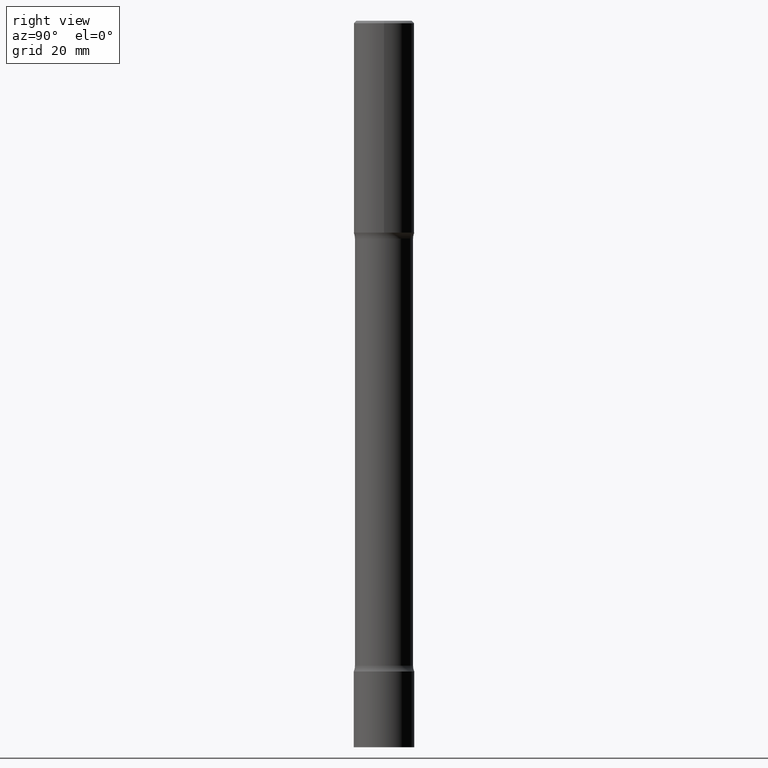
[diagram: clean part render]
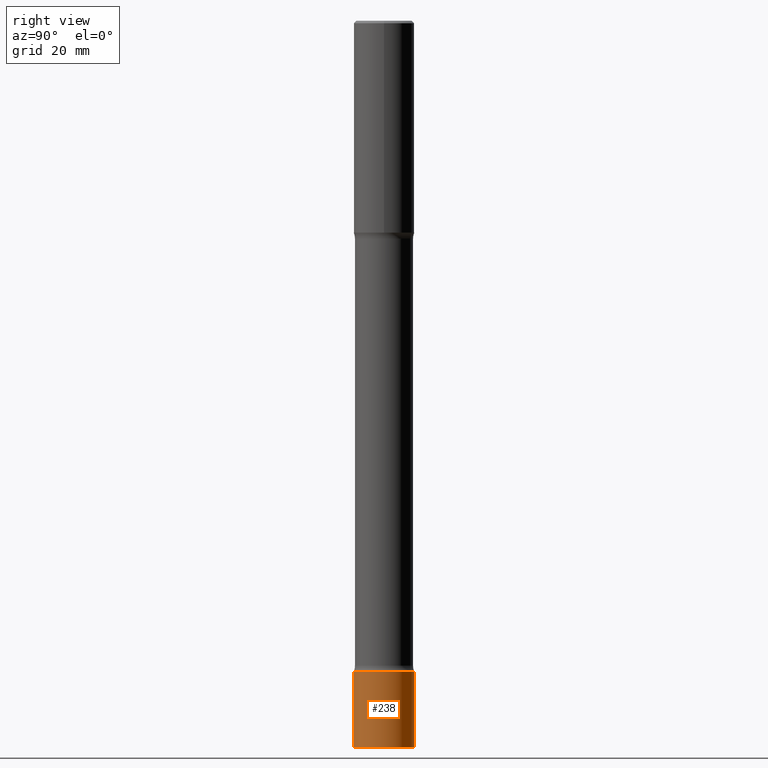
[diagram: same view with one face highlighted and labeled with its STEP entity id]
A machine part, right view. The second image highlights one B-rep face of the part: STEP entity #238.
In plain terms, the highlighted cylindrical surface (edge-blend (fillet) strip) has radius 6.35 mm, axis along (-0, 0, 1).
Its self-contained STEP definition (entity closure, byte-faithful):
#9 = CARTESIAN_POINT ( 'NONE',  ( -1.745740669421418766E-15, -0.2500000000000208167, -5.999999999999999112 ) ) ;
#25 = CARTESIAN_POINT ( 'NONE',  ( -1.745740669421565494E-15, -0.2499999999999998612, 8.729905339774488277E-16 ) ) ;
#33 = CARTESIAN_POINT ( 'NONE',  ( 1.314259023721017932E-28, -1.876929648051516616E-14, -5.375000000000001776 ) ) ;
#65 = CARTESIAN_POINT ( 'NONE',  ( -1.745740669421433952E-15, -0.2500000000000186517, -5.375000000000000888 ) ) ;
#67 = VECTOR ( 'NONE', #286, 39.37007874015748143 ) ;
#70 = DIRECTION ( 'NONE',  ( -2.445133067387939662E-29, 3.491962135909797283E-15, 1.000000000000000000 ) ) ;
#78 = VERTEX_POINT ( 'NONE', #9 ) ;
#79 = VERTEX_POINT ( 'NONE', #403 ) ;
#109 = DIRECTION ( 'NONE',  ( -2.445133067387939662E-29, 3.491962135909797283E-15, 1.000000000000000000 ) ) ;
#116 = LINE ( 'NONE', #315, #459 ) ;
#138 = EDGE_CURVE ( 'NONE', #357, #79, #116, .T. ) ;
#143 = AXIS2_PLACEMENT_3D ( 'NONE', #351, #109, #176 ) ;
#157 = ORIENTED_EDGE ( 'NONE', *, *, #300, .F. ) ;
#164 = DIRECTION ( 'NONE',  ( -2.445133067387939381E-29, 3.491962135909797283E-15, 1.000000000000000000 ) ) ;
#171 = ORIENTED_EDGE ( 'NONE', *, *, #412, .F. ) ;
#176 = DIRECTION ( 'NONE',  ( -6.982962677686265922E-15, -1.000000000000000000, 4.370956789862823516E-15 ) ) ;
#186 = ORIENTED_EDGE ( 'NONE', *, *, #452, .T. ) ;
#238 = ADVANCED_FACE ( 'NONE', ( #488 ), #416, .T. ) ;
#241 = CARTESIAN_POINT ( 'NONE',  ( 0.000000000000000000, 0.000000000000000000, 0.000000000000000000 ) ) ;
#252 = AXIS2_PLACEMENT_3D ( 'NONE', #241, #291, #489 ) ;
#286 = DIRECTION ( 'NONE',  ( -2.445133067387939381E-29, 3.491962135909797283E-15, 1.000000000000000000 ) ) ;
#287 = ORIENTED_EDGE ( 'NONE', *, *, #138, .T. ) ;
#291 = DIRECTION ( 'NONE',  ( -2.445133067387939662E-29, 3.491962135909797283E-15, 1.000000000000000000 ) ) ;
#300 = EDGE_CURVE ( 'NONE', #78, #310, #411, .T. ) ;
#308 = EDGE_LOOP ( 'NONE', ( #186, #287, #171, #157 ) ) ;
#310 = VERTEX_POINT ( 'NONE', #65 ) ;
#315 = CARTESIAN_POINT ( 'NONE',  ( 1.776356839400249281E-15, 0.2499999999999998612, -8.729905339774488277E-16 ) ) ;
#351 = CARTESIAN_POINT ( 'NONE',  ( 1.467079840432764021E-28, -2.095177281545878449E-14, -6.000000000000000888 ) ) ;
#357 = VERTEX_POINT ( 'NONE', #491 ) ;
#366 = CIRCLE ( 'NONE', #396, 0.2499999999999998612 ) ;
#387 = CIRCLE ( 'NONE', #143, 0.2499999999999998612 ) ;
#396 = AXIS2_PLACEMENT_3D ( 'NONE', #33, #70, #457 ) ;
#403 = CARTESIAN_POINT ( 'NONE',  ( 1.776356839400396404E-15, 0.2499999999999811262, -5.375000000000002665 ) ) ;
#411 = LINE ( 'NONE', #25, #67 ) ;
#412 = EDGE_CURVE ( 'NONE', #310, #79, #366, .T. ) ;
#416 = CYLINDRICAL_SURFACE ( 'NONE', #252, 0.2499999999999998612 ) ;
#452 = EDGE_CURVE ( 'NONE', #78, #357, #387, .T. ) ;
#457 = DIRECTION ( 'NONE',  ( -6.982962677686265922E-15, -1.000000000000000000, 4.370956789862823516E-15 ) ) ;
#459 = VECTOR ( 'NONE', #164, 39.37007874015748143 ) ;
#488 = FACE_OUTER_BOUND ( 'NONE', #308, .T. ) ;
#489 = DIRECTION ( 'NONE',  ( -6.982962677686265922E-15, -1.000000000000000000, 3.491962135909797283E-15 ) ) ;
#491 = CARTESIAN_POINT ( 'NONE',  ( 1.776356839400388121E-15, 0.2499999999999789058, -6.000000000000001776 ) ) ;